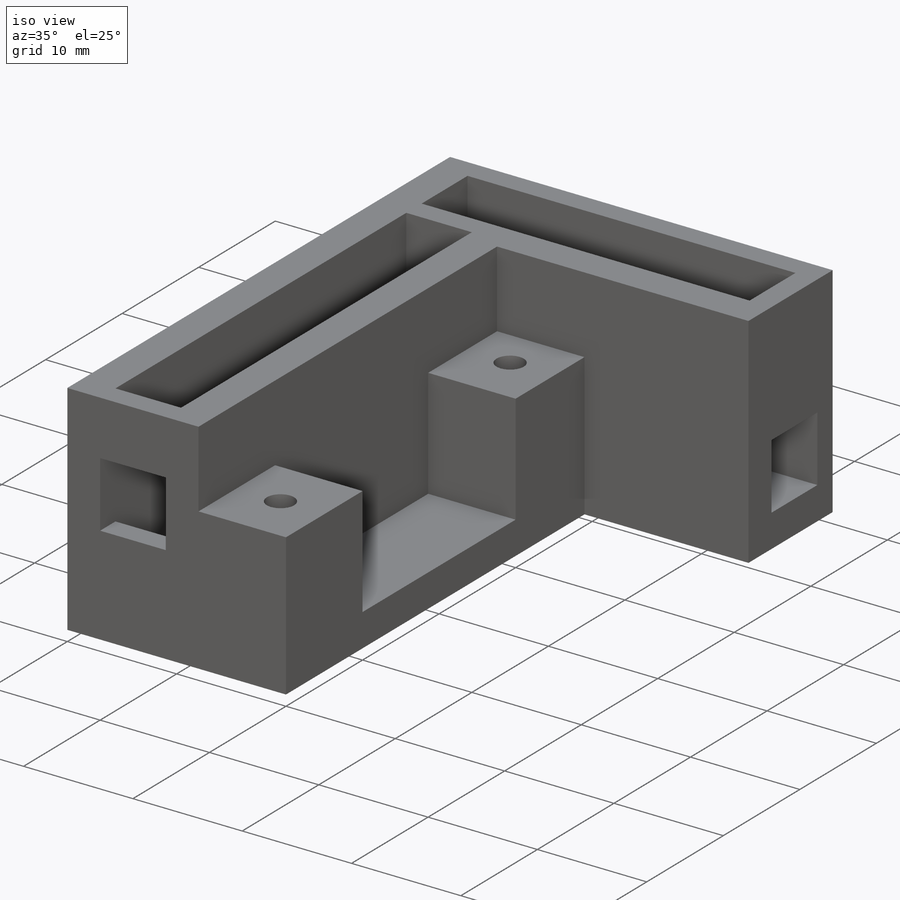
[diagram: iso view]
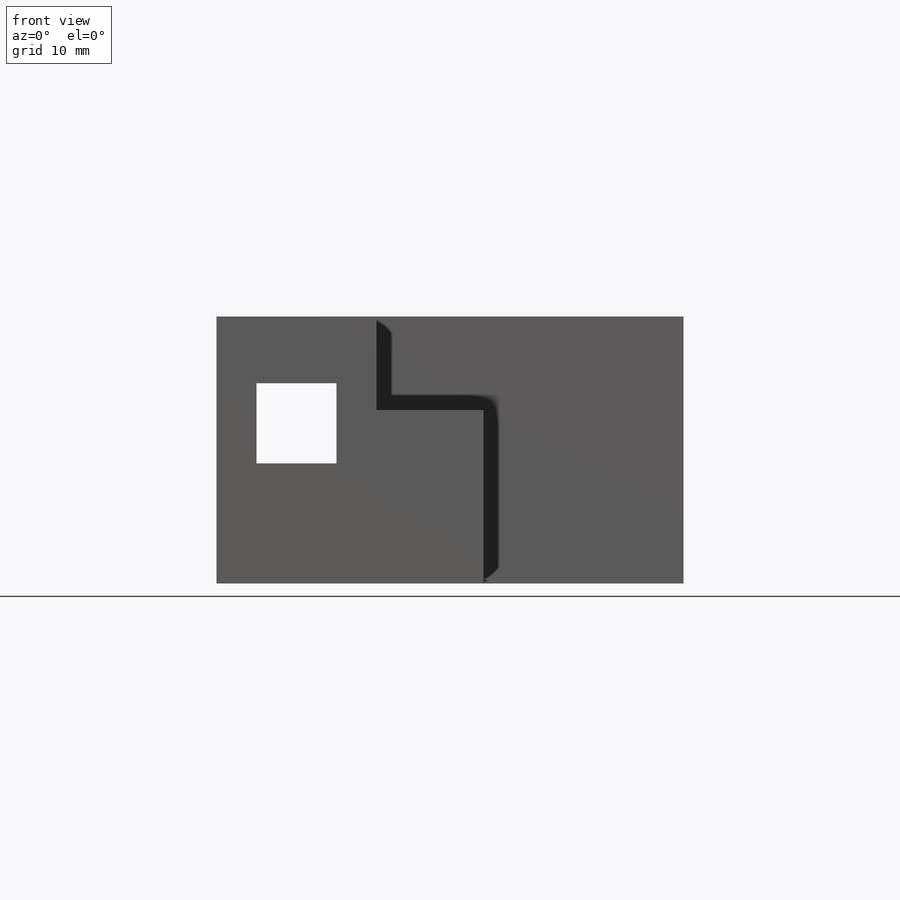
[diagram: front view]
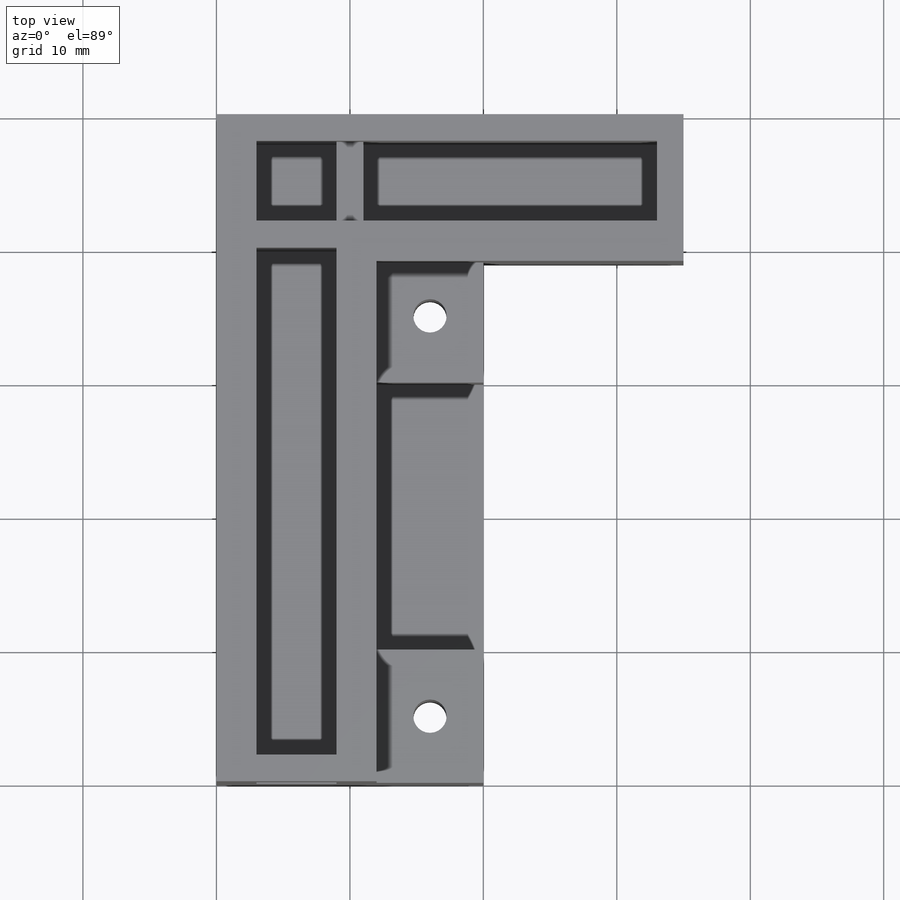
[diagram: top view]
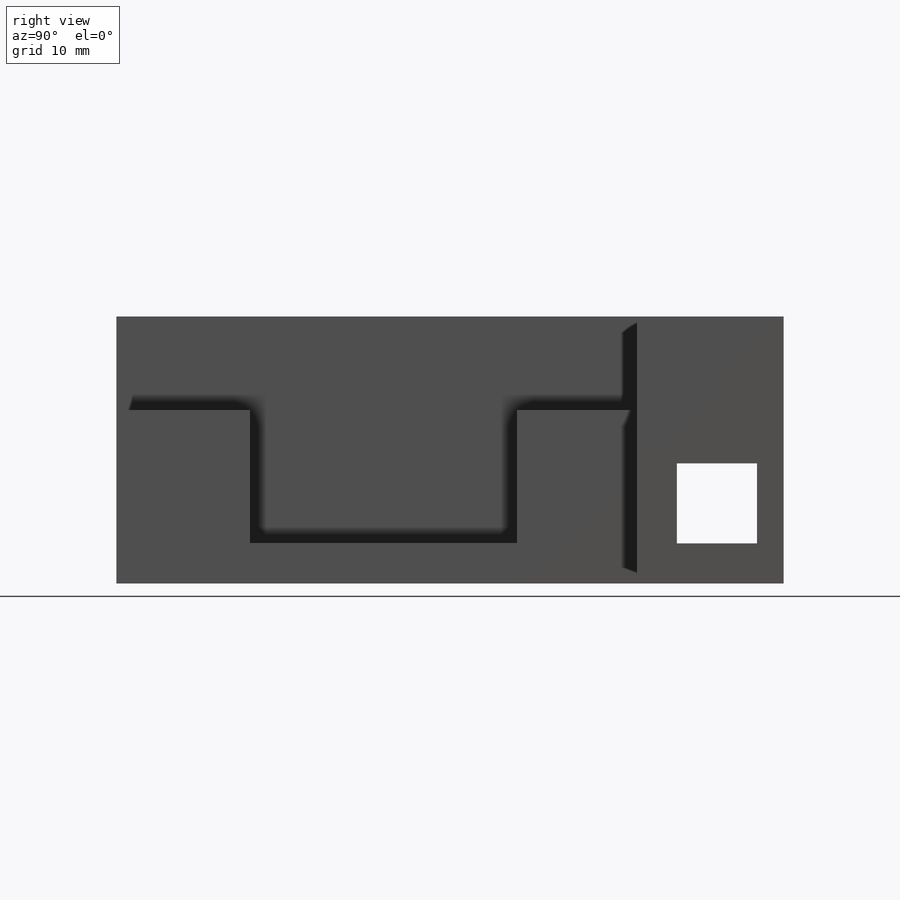
[diagram: right view]
SOLIDWORKS PART (.sldprt)
format: sldprt  version: not decoded by parser v0  size: 415,744 bytes
history: native  units: mm
features: sketch x13, extrude x8, plane x3, cut_extrude x3, material x1, move_body x1 (+13 scaffold rows collapsed; 1 parser-record rows omitted)
feature tree (43):
  scaffold x13  (default folders/planes/origin — collapsed)
  material  "Material <não especificado>"
  plane  "Plano frontal"
  plane  "Plano superior"
  plane  "Plano direito"
  parser-record x1  (decoder bookkeeping rows leaked as tree rows — omitted from the tree; the rows remain in map.json)
  sketch  "Esboço1"  dims[c1.D1=50.0mm c1.D2=20.0mm c1.D3=20.0mm c1.D4=10.0mm c2.D2=35.0mm c2.D5=3.0mm c2.D6=6.0mm c2.D7=2.0mm c2.D8=6.0mm c2.D9=2.0mm c2.D10=2.0mm c2.D11=2.0mm]
  extrude  "Ressalto-extrusão1"  Depth=2mm
  extrude  "Ressalto-extrusão2"  [1 undecoded]
  sketch  "Esboço1<3>"  dims[D1=8.0mm]
  extrude  "Ressalto-extrusão3"  [1 undecoded]
  sketch  "Esboço1<4>"  dims[D1=8.0mm]
  extrude  "Ressalto-extrusão5"  [1 undecoded]
  sketch  "Esboço1<5>"  dims[D1=6.2mm D19=8.0mm]
  extrude  "Ressalto-extrusão6"  [1 undecoded]
  sketch  "Esboço1<6>"  dims[D1=5.0mm D19=14.0mm]
  sketch  "Esboço2"
  sketch  "Esboço3"
  sketch  "Esboço4"  dims[D1=6.0mm]
  cut_extrude  "Corte-extrusão1"  Depth=5mm
  move_body  "Corpo-Mover/Copiar1"
  sketch  "Esboço8"  dims[D1=2.5mm D2=2.5mm D3=4.0mm D4=5.0mm D5=30.0mm]
  cut_extrude  "Corte-extrusão2"  Depth=10mm
  sketch  "Esboço9"  dims[D1=10.0mm D2=10.0mm]
  extrude  "Ressalto-extrusão7"  Depth=10mm
  sketch  "Esboço10"  dims[D1=1.0mm]
  extrude  "Ressalto-extrusão8"  [1 undecoded]
  sketch  "Esboço11"  dims[D1=1.0mm]
  extrude  "Ressalto-extrusão9"  [1 undecoded]
  sketch  "Esboço12"  dims[D1=0.0mm D2=0.0mm]
  cut_extrude  "Corte-extrusão3"  Depth=10mm
decode coverage: 16 of 25 modeling features carry decoded parameters
note: 6 parameter values undecoded
summary: no parameter record found for 6 features
note: suppression state not decoded; provenance and decode notes live in map.json
